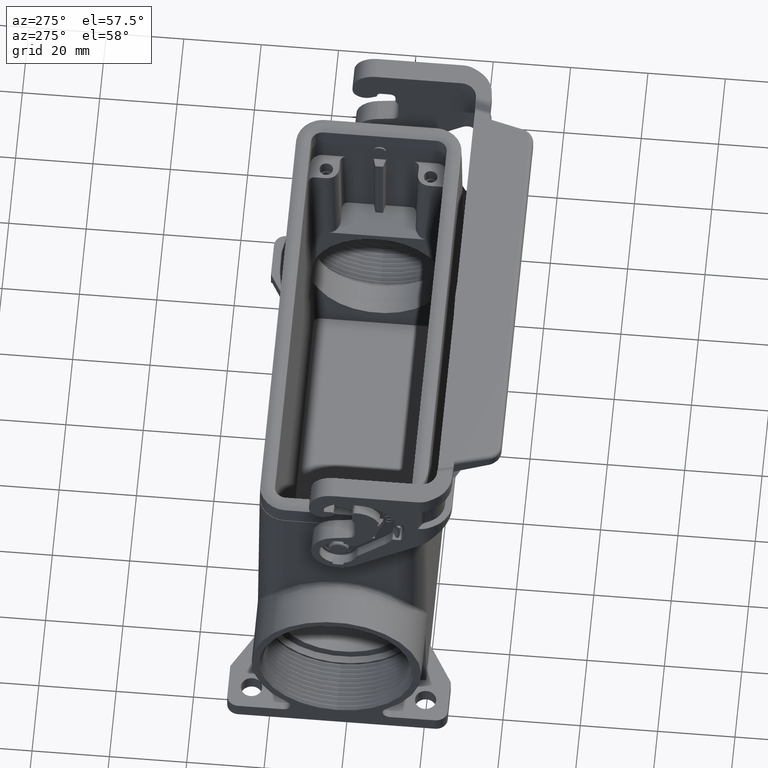
[diagram: clean part render]
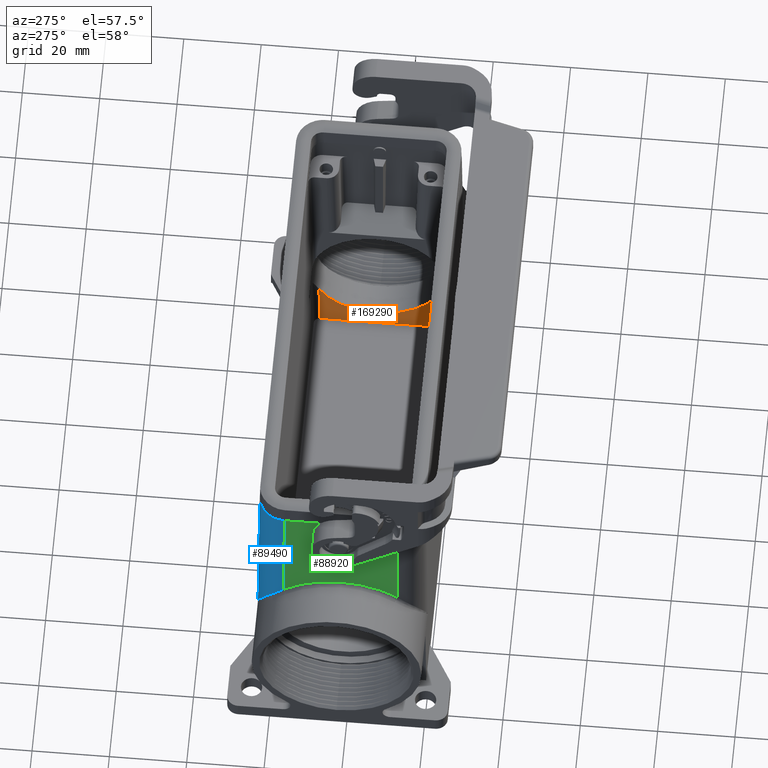
[diagram: same view with three faces highlighted in distinct colors, each labeled with its STEP entity id]
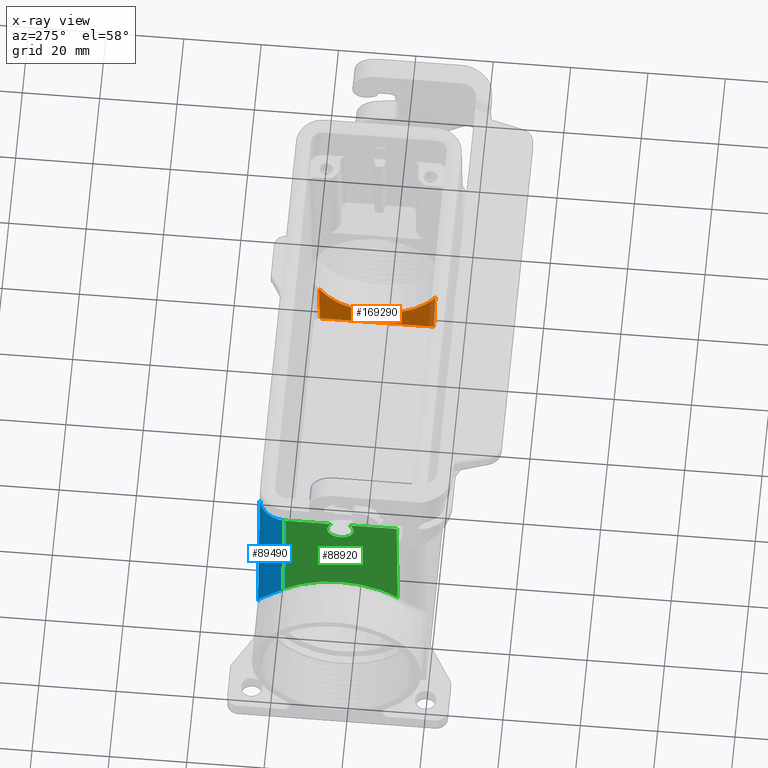
[diagram: x-ray of the same camera — body ghosted, the three highlighted faces saturated]
A machine part, auxiliary view with three faces highlighted in distinct colors.
The next image is the same camera in x-ray (body ghosted, the three faces saturated) — at least one of them is partly hidden behind the body in this view.
Their STEP definitions:

[orange] entity #169290 — the highlighted planar face has unit normal (-0.9997, -0, 0.0233).
#34190=CARTESIAN_POINT('',(11.8242122005722,24.7103080625445,
35.5348656497852));
#34200=DIRECTION('',(-0.0232626536972686,-0.0232626536972686,
0.999458702441438));
#34210=VECTOR('',#34200,1.);
#34220=LINE('',#34190,#34210);
#34230=CARTESIAN_POINT('',(12.5814694147516,25.4675652767239,
2.99999999999997));
#34240=VERTEX_POINT('',#34230);
#34250=CARTESIAN_POINT('',(12.2648725334105,25.1509683953828,
16.6022962960281));
#34260=VERTEX_POINT('',#34250);
#34270=EDGE_CURVE('',#34240,#34260,#34220,.T.);
#85060=CARTESIAN_POINT('',(12.5814694147516,0.,2.99999999999997));
#85070=DIRECTION('',(-2.85039635158937E-18,1.,1.22464679914735E-16));
#85080=VECTOR('',#85070,1.);
#85090=LINE('',#85060,#85080);
#85100=CARTESIAN_POINT('',(12.5814694147516,54.9425947232761,
2.99999999999998));
#85110=VERTEX_POINT('',#85100);
#85120=EDGE_CURVE('',#34240,#85110,#85090,.T.);
#119220=CARTESIAN_POINT('',(11.8242122005722,55.6998519374555,
35.5348656497852));
#119230=DIRECTION('',(-0.0232626536972686,0.0232626536972685,
0.999458702441438));
#119240=VECTOR('',#119230,1.);
#119250=LINE('',#119220,#119240);
#119260=CARTESIAN_POINT('',(12.2648725334105,55.2591916046172,
16.6022962960281));
#119270=VERTEX_POINT('',#119260);
#119280=EDGE_CURVE('',#85110,#119270,#119250,.T.);
#165930=CARTESIAN_POINT('',(12.6508666379349,57.95508,0.0184115905912113
));
#165940=DIRECTION('',(0.999729241314835,0.,0.0232689505578674));
#165950=DIRECTION('',(0.,-1.,0.));
#165960=AXIS2_PLACEMENT_3D('',#165930,#165940,#165950);
#165970=PLANE('',#165960);
#169170=ORIENTED_EDGE('',*,*,#85120,.T.);
#169180=ORIENTED_EDGE('',*,*,#34270,.F.);
#169190=CARTESIAN_POINT('',(12.0810514852568,40.20508,24.5));
#169200=DIRECTION('',(0.999729241314835,0.,0.0232689505578674));
#169210=DIRECTION('',(0.0232689505578674,0.,-0.999729241314835));
#169220=AXIS2_PLACEMENT_3D('',#169190,#169200,#169210);
#169230=ELLIPSE('',#169220,17.0046041442599,17.);
#169240=EDGE_CURVE('',#34260,#119270,#169230,.T.);
#169250=ORIENTED_EDGE('',*,*,#169240,.F.);
#169260=ORIENTED_EDGE('',*,*,#119280,.T.);
#169270=EDGE_LOOP('',(#169260,#169250,#169180,#169170));
#169280=FACE_OUTER_BOUND('',#169270,.T.);
#169290=ADVANCED_FACE('',(#169280),#165970,.T.);

[blue] entity #89490 — the highlighted cylindrical surface (edge-blend (fillet) strip) has radius 7 mm, axis along (0.0087, -0.0087, 0.9999).
#2850=CARTESIAN_POINT('',(120.318578,25.7048134614492,74.5));
#2860=VERTEX_POINT('',#2850);
#2890=CARTESIAN_POINT('',(113.3183114513,25.7053465487002,74.5));
#2900=DIRECTION('',(0.,1.22464679914735E-16,-1.));
#2910=DIRECTION('',(-0.707106781186218,0.707106781186877,
8.65956056235897E-17));
#2920=AXIS2_PLACEMENT_3D('',#2890,#2900,#2910);
#2930=ELLIPSE('',#2920,7.00053308725135,7.);
#2940=CARTESIAN_POINT('',(113.318844538551,18.70508,74.5));
#2950=VERTEX_POINT('',#2940);
#2960=EDGE_CURVE('',#2860,#2950,#2930,.T.);
#59280=CARTESIAN_POINT('',(113.968463101711,25.0551948982886,
-2.53533330069838E-14));
#59290=DIRECTION('',(-0.00872620324394422,0.00872620324394409,
0.99992385047757));
#59300=DIRECTION('',(-0.999961923064171,1.06869237657294E-18,
-0.00872653549837393));
#59310=AXIS2_PLACEMENT_3D('',#59280,#59290,#59300);
#59320=CYLINDRICAL_SURFACE('',#59310,7.);
#59480=CARTESIAN_POINT('',(113.753517422414,18.2704071161367,
24.691420990291));
#59490=VERTEX_POINT('',#59480);
#82100=CARTESIAN_POINT('',(113.753517422414,18.2704071161367,
24.691420990291));
#82110=CARTESIAN_POINT('',(113.846060045276,18.2719958029603,
24.8734664688854));
#82120=CARTESIAN_POINT('',(113.938620892482,18.2754830827744,
25.0554820970824));
#82130=CARTESIAN_POINT('',(114.123630453132,18.2862566555968,
25.419456134952));
#82140=CARTESIAN_POINT('',(114.216085855067,18.2935425828071,
25.6014031121689));
#82150=CARTESIAN_POINT('',(114.400807769353,18.3119178331437,
25.9651877931404));
#82160=CARTESIAN_POINT('',(114.493071058289,18.3230065427213,
26.1470191022474));
#82170=CARTESIAN_POINT('',(114.67731314947,18.3489950824422,
26.5105338513637));
#82180=CARTESIAN_POINT('',(114.769288738305,18.3638940852797,
26.6922108840377));
#82190=CARTESIAN_POINT('',(114.952850098882,18.3975127209538,
27.0553614016385));
#82200=CARTESIAN_POINT('',(115.044432704172,18.4162309648082,
27.2368284763972));
#82210=CARTESIAN_POINT('',(115.227115140011,18.4575027098596,
27.5995306639354));
#82220=CARTESIAN_POINT('',(115.318211799278,18.4800548489272,
27.7807593326365));
#82230=CARTESIAN_POINT('',(115.499819100509,18.529011230562,
28.1429397195044));
#82240=CARTESIAN_POINT('',(115.590326605344,18.5554138083556,
28.3238849689914));
#82250=CARTESIAN_POINT('',(115.770650425379,18.6120912339498,
28.6854542267047));
#82260=CARTESIAN_POINT('',(115.860463636661,18.642364152564,
28.8660717312385));
#82270=CARTESIAN_POINT('',(116.039214608271,18.706778379366,
29.226787151665));
#82280=CARTESIAN_POINT('',(116.128149964279,18.7409141950154,
29.4068788036527));
#82290=CARTESIAN_POINT('',(116.305107985693,18.8131006716728,
29.7666447724271));
#82300=CARTESIAN_POINT('',(116.39312766007,18.8511487987061,
29.9463125317727));
#82310=CARTESIAN_POINT('',(116.568134918817,18.9311883434163,
30.3051766555012));
#82320=CARTESIAN_POINT('',(116.655119594785,18.9731768553597,
30.4843664306842));
#82330=CARTESIAN_POINT('',(116.827933859592,19.0611292757132,
30.8422217839522));
#82340=CARTESIAN_POINT('',(116.913760612064,19.1070899818208,
31.0208807274558));
#82350=CARTESIAN_POINT('',(117.084116847588,19.2030146380058,
31.3775916588943));
#82360=CARTESIAN_POINT('',(117.168643766406,19.2529744720905,
31.55563704213));
#82370=CARTESIAN_POINT('',(117.336274642612,19.3569398169574,
31.9110833841984));
#82380=CARTESIAN_POINT('',(117.419375985967,19.4109413844636,
32.0884776334159));
#82390=CARTESIAN_POINT('',(117.584008166324,19.5230283868383,
32.4425518036915));
#82400=CARTESIAN_POINT('',(117.665536562566,19.5811093951342,
32.6192249931648));
#82410=CARTESIAN_POINT('',(117.82686935294,19.701397536232,
32.9717891063397));
#82420=CARTESIAN_POINT('',(117.906670751037,19.7635993271123,
33.1476717088873));
#82430=CARTESIAN_POINT('',(118.05194437588,19.8820308308677,
33.4708998173166));
#82440=CARTESIAN_POINT('',(118.117680490906,19.9376432859606,
33.6183449160827));
#82450=CARTESIAN_POINT('',(118.247708236452,20.0518515656365,
33.9125778030928));
#82460=CARTESIAN_POINT('',(118.311998235313,20.1104436300824,
34.0593604400421));
#82470=CARTESIAN_POINT('',(118.439020183625,20.2306359876222,
34.3522106858118));
#82480=CARTESIAN_POINT('',(118.501751149875,20.2922326080366,
34.4982742354882));
#82490=CARTESIAN_POINT('',(118.625537871862,20.4184618727884,
34.789632207416));
#82500=CARTESIAN_POINT('',(118.686592771024,20.4830906319423,
34.9349225636494));
#82510=CARTESIAN_POINT('',(118.806889412832,20.6153974887978,
35.2246441574678));
#82520=CARTESIAN_POINT('',(118.866130826219,20.6830707992543,
35.3690714863299));
#82530=CARTESIAN_POINT('',(118.982679168805,20.8215045626358,
35.657030626908));
#82540=CARTESIAN_POINT('',(119.039985621146,20.892260559304,
35.8005584128658));
#82550=CARTESIAN_POINT('',(119.152519494211,21.0368822807434,
36.0866437151753));
#82560=CARTESIAN_POINT('',(119.207746724071,21.1107431565984,
36.2291972646755));
#82570=CARTESIAN_POINT('',(119.315971084532,21.2615990823078,
36.5132614826669));
#82580=CARTESIAN_POINT('',(119.368968217792,21.3385890287486,
36.6547681725972));
#82590=CARTESIAN_POINT('',(119.472441621106,21.4955296027025,
36.9363088002914));
#82600=CARTESIAN_POINT('',(119.522923933286,21.5754668361984,
37.0763412165837));
#82610=CARTESIAN_POINT('',(119.621333836069,21.7384961988711,
37.3551969883353));
#82620=CARTESIAN_POINT('',(119.669262056776,21.8215825880922,
37.4940165326781));
#82630=CARTESIAN_POINT('',(119.762376586228,21.990918350764,
37.7703444509672));
#82640=CARTESIAN_POINT('',(119.807564018749,22.0771615099399,
37.9078491788048));
#82650=CARTESIAN_POINT('',(119.895000992859,22.2528196233878,
38.1814487556976));
#82660=CARTESIAN_POINT('',(119.937251963022,22.3422281206351,
38.3175400046534));
#82670=CARTESIAN_POINT('',(120.018585733044,22.5241736074483,
38.5881378380184));
#82680=CARTESIAN_POINT('',(120.057671830378,22.6167022577943,
38.7226415403311));
#82690=CARTESIAN_POINT('',(120.132471329079,22.80491527569,
38.9900046527242));
#82700=CARTESIAN_POINT('',(120.168187136385,22.9005924137322,
39.1228607016356));
#82710=CARTESIAN_POINT('',(120.23600299696,23.0950735816321,
39.3867875386904));
#82720=CARTESIAN_POINT('',(120.268106246776,23.1938697679482,
39.5178551927237));
#82730=CARTESIAN_POINT('',(120.328443118775,23.3945579546003,
39.7780701230668));
#82740=CARTESIAN_POINT('',(120.356678544705,23.4964348002493,
39.9072055095222));
#82750=CARTESIAN_POINT('',(120.401454349481,23.6733817204784,
40.1264215902846));
#82760=CARTESIAN_POINT('',(120.419006775056,23.7476386845308,
40.2169442246887));
#82770=CARTESIAN_POINT('',(120.451919176463,23.8976715714765,
40.396892287312));
#82780=CARTESIAN_POINT('',(120.467279754957,23.9734399040247,
40.4863112112819));
#82790=CARTESIAN_POINT('',(120.495699299772,24.1264531421521,
40.6639757860452));
#82800=CARTESIAN_POINT('',(120.50876024424,24.2036946451805,
40.7522203927704));
#82810=CARTESIAN_POINT('',(120.532470825421,24.3596188306621,
40.9274736897363));
#82820=CARTESIAN_POINT('',(120.543122572713,24.4382980027543,
41.0144812853878));
#82830=CARTESIAN_POINT('',(120.561897820676,24.5970266430461,
41.1871637580215));
#82840=CARTESIAN_POINT('',(120.570024464793,24.6770719355024,
41.2728378896427));
#82850=CARTESIAN_POINT('',(120.583637174999,24.8385046812766,
41.4428107444454));
#82860=CARTESIAN_POINT('',(120.589125791646,24.9198882653147,
41.5271082866904));
#82870=CARTESIAN_POINT('',(120.597342386432,25.0839321447157,
41.694249854467));
#82880=CARTESIAN_POINT('',(120.600073266992,25.1665882958694,
41.7770926703164));
#82890=CARTESIAN_POINT('',(120.601733285413,25.2737579624089,
41.8827421054681));
#82900=CARTESIAN_POINT('',(120.601984715624,25.2976754926853,
41.9062088150009));
#82910=CARTESIAN_POINT('',(120.602298461286,25.354804611748,
41.9619956331921));
#82920=CARTESIAN_POINT('',(120.602251349804,25.3880565807312,
41.9942537682459));
#82930=CARTESIAN_POINT('',(120.601970741967,25.4214207194819,
42.0264082415233));
#82940=B_SPLINE_CURVE_WITH_KNOTS('',3,(#82100,#82110,#82120,#82130,
#82140,#82150,#82160,#82170,#82180,#82190,#82200,#82210,#82220,#82230,
#82240,#82250,#82260,#82270,#82280,#82290,#82300,#82310,#82320,#82330,
#82340,#82350,#82360,#82370,#82380,#82390,#82400,#82410,#82420,#82430,
#82440,#82450,#82460,#82470,#82480,#82490,#82500,#82510,#82520,#82530,
#82540,#82550,#82560,#82570,#82580,#82590,#82600,#82610,#82620,#82630,
#82640,#82650,#82660,#82670,#82680,#82690,#82700,#82710,#82720,#82730,
#82740,#82750,#82760,#82770,#82780,#82790,#82800,#82810,#82820,#82830,
#82840,#82850,#82860,#82870,#82880,#82890,#82900,#82910,#82920,#82930),
.UNSPECIFIED.,.F.,.F.,(4,2,2,2,2,2,2,2,2,2,2,2,2,2,2,2,2,2,2,2,2,2,2,2,2
,2,2,2,2,2,2,2,2,2,2,2,2,2,2,2,2,4),(0.,0.613255802522239,
1.22649025827538,1.83967804744032,2.45280675947127,3.06580862896543,
3.67871093117657,4.29148897969965,4.90412525206613,5.51608497536884,
6.12785859073013,6.73941551734563,7.35073855174083,7.96171844659107,
8.57241265569201,9.18278158748885,9.79280800343349,10.306238753217,
10.8193862772319,11.3322213711624,11.844732485353,12.3567954269883,
12.8684900749464,13.37977885699,13.8906510259596,14.3998229476871,
14.9085284300285,15.4167194190234,15.9243887699568,16.4312770194126,
16.9375865937622,17.4432569442065,17.9482909296269,18.3068447469986,
18.6650547011255,19.0229003731138,19.3803847450653,19.7373837351508,
20.0940075064604,20.4502359883569,20.5522851587564,20.6934588827707),
.UNSPECIFIED.);
#82950=CARTESIAN_POINT('',(120.601970741967,25.4214207194819,
42.0264082415233));
#82960=VERTEX_POINT('',#82950);
#82970=EDGE_CURVE('',#59490,#82960,#82940,.T.);
#88450=CARTESIAN_POINT('',(120.968196563161,25.0551948982886,
0.0610857484885922));
#88460=DIRECTION('',(-0.00872620324394422,0.00872620324394409,
0.99992385047757));
#88470=VECTOR('',#88460,1.);
#88480=LINE('',#88450,#88470);
#88490=EDGE_CURVE('',#82960,#2860,#88480,.T.);
#89380=ORIENTED_EDGE('',*,*,#88490,.T.);
#89390=ORIENTED_EDGE('',*,*,#82970,.T.);
#89400=CARTESIAN_POINT('',(113.968463101711,18.0554614368394,
0.0610857484885913));
#89410=DIRECTION('',(-0.00872620324394422,0.00872620324394409,
0.99992385047757));
#89420=VECTOR('',#89410,1.);
#89430=LINE('',#89400,#89420);
#89440=EDGE_CURVE('',#59490,#2950,#89430,.T.);
#89450=ORIENTED_EDGE('',*,*,#89440,.F.);
#89460=ORIENTED_EDGE('',*,*,#2960,.T.);
#89470=EDGE_LOOP('',(#89460,#89450,#89390,#89380));
#89480=FACE_OUTER_BOUND('',#89470,.T.);
#89490=ADVANCED_FACE('',(#89480),#59320,.T.);

[green] entity #88920 — the highlighted planar face has unit normal (1, -0, -0.0087).
#620=CARTESIAN_POINT('',(120.318578,54.7053465385508,74.5));
#630=VERTEX_POINT('',#620);
#660=CARTESIAN_POINT('',(120.318578,5.08723606155422E-15,74.5));
#670=DIRECTION('',(0.,1.,1.22464679914735E-16));
#680=VECTOR('',#670,1.);
#690=LINE('',#660,#680);
#700=CARTESIAN_POINT('',(120.318578,42.467406094865,74.5));
#710=VERTEX_POINT('',#700);
#720=EDGE_CURVE('',#710,#630,#690,.T.);
#2810=CARTESIAN_POINT('',(120.318578,37.8587186461439,74.5));
#2820=VERTEX_POINT('',#2810);
#2850=CARTESIAN_POINT('',(120.318578,25.7048134614492,74.5));
#2860=VERTEX_POINT('',#2850);
#2870=EDGE_CURVE('',#2860,#2820,#690,.T.);
#63810=CARTESIAN_POINT('',(120.601970741967,54.9887392805179,
42.0264082415494));
#63820=VERTEX_POINT('',#63810);
#63850=CARTESIAN_POINT('',(120.968196563161,55.3549651017114,
0.0610857484885959));
#63860=DIRECTION('',(-0.00872620324394422,-0.00872620324394434,
0.99992385047757));
#63870=VECTOR('',#63860,1.);
#63880=LINE('',#63850,#63870);
#63890=EDGE_CURVE('',#63820,#630,#63880,.T.);
#82950=CARTESIAN_POINT('',(120.601970741967,25.4214207194819,
42.0264082415233));
#82960=VERTEX_POINT('',#82950);
#88400=CARTESIAN_POINT('',(120.968704894629,18.70508,0.00283673171921044
));
#88410=DIRECTION('',(-0.999961923064171,1.06869237657294E-18,
-0.00872653549837393));
#88420=DIRECTION('',(0.,1.,1.22464679914735E-16));
#88430=AXIS2_PLACEMENT_3D('',#88400,#88410,#88420);
#88440=PLANE('',#88430);
#88450=CARTESIAN_POINT('',(120.968196563161,25.0551948982886,
0.0610857484885922));
#88460=DIRECTION('',(-0.00872620324394422,0.00872620324394409,
0.99992385047757));
#88470=VECTOR('',#88460,1.);
#88480=LINE('',#88450,#88470);
#88490=EDGE_CURVE('',#82960,#2860,#88480,.T.);
#88500=ORIENTED_EDGE('',*,*,#88490,.F.);
#88510=ORIENTED_EDGE('',*,*,#2870,.F.);
#88520=CARTESIAN_POINT('',(120.340395169477,40.1630623705045,72.));
#88530=DIRECTION('',(-0.999961923064171,1.06869237657294E-18,
-0.00872653549837393));
#88540=DIRECTION('',(0.00872653549837394,-2.12197055592782E-14,
-0.999961923064171));
#88550=AXIS2_PLACEMENT_3D('',#88520,#88530,#88540);
#88560=ELLIPSE('',#88550,3.4001294665115,3.4);
#88570=CARTESIAN_POINT('',(120.340395169477,36.7630623705045,72.));
#88580=VERTEX_POINT('',#88570);
#88590=EDGE_CURVE('',#88580,#2820,#88560,.T.);
#88600=ORIENTED_EDGE('',*,*,#88590,.T.);
#88610=CARTESIAN_POINT('',(120.340395169477,43.5630623705045,72.));
#88620=VERTEX_POINT('',#88610);
#88630=EDGE_CURVE('',#88620,#88580,#88560,.T.);
#88640=ORIENTED_EDGE('',*,*,#88630,.T.);
#88650=EDGE_CURVE('',#710,#88620,#88560,.T.);
#88660=ORIENTED_EDGE('',*,*,#88650,.T.);
#88670=ORIENTED_EDGE('',*,*,#720,.F.);
#88680=ORIENTED_EDGE('',*,*,#63890,.T.);
#88690=CARTESIAN_POINT('',(120.601970741967,25.4214207194819,
42.0264082415233));
#88700=CARTESIAN_POINT('',(120.601700588386,25.4581387596814,
42.0573647757447));
#88710=CARTESIAN_POINT('',(120.601431441954,25.4949538676778,
42.0882059020429));
#88720=CARTESIAN_POINT('',(120.592657024723,26.7028490784143,
43.0936545282682));
#88730=CARTESIAN_POINT('',(120.585184938145,27.968763835919,
43.9498708429079));
#88740=CARTESIAN_POINT('',(120.571009545039,30.9781652589275,
45.5742100039438));
#88750=CARTESIAN_POINT('',(120.56498976951,32.7502661989105,
46.2640079558392));
#88760=CARTESIAN_POINT('',(120.55689060107,36.4236037448019,
47.1920807346182));
#88770=CARTESIAN_POINT('',(120.554842397775,38.3106941486967,
47.4267815853));
#88780=CARTESIAN_POINT('',(120.554842397775,42.0994658513033,
47.4267815853));
#88790=CARTESIAN_POINT('',(120.55689060107,43.9865562551981,
47.1920807346182));
#88800=CARTESIAN_POINT('',(120.56498976951,47.6598938010895,
46.2640079558392));
#88810=CARTESIAN_POINT('',(120.571009545039,49.4319947410727,
45.5742100039437));
#88820=CARTESIAN_POINT('',(120.585184938145,52.4413961640802,
43.9498708429084));
#88830=CARTESIAN_POINT('',(120.592657024723,53.7073109215841,
43.0936545282693));
#88840=CARTESIAN_POINT('',(120.601431441954,54.9152061323118,
42.0882059020516));
#88850=CARTESIAN_POINT('',(120.601700588386,54.9520212403217,
42.0573647757679));
#88860=CARTESIAN_POINT('',(120.601970741967,54.9887392805179,
42.0264082415494));
#88870=B_SPLINE_CURVE_WITH_KNOTS('',3,(#88690,#88700,#88710,#88720,
#88730,#88740,#88750,#88760,#88770,#88780,#88790,#88800,#88810,#88820,
#88830,#88840,#88850,#88860),.UNSPECIFIED.,.F.,.F.,(4,2,2,2,2,2,2,2,4),(
0.,0.140929897986439,4.61176012079203,10.1639314900745,15.7161008050812,
21.2682701200879,26.8204414893706,31.2912717121739,31.4322016101292),
.UNSPECIFIED.);
#88880=EDGE_CURVE('',#82960,#63820,#88870,.T.);
#88890=ORIENTED_EDGE('',*,*,#88880,.T.);
#88900=EDGE_LOOP('',(#88890,#88680,#88670,#88660,#88640,#88600,#88510,
#88500));
#88910=FACE_OUTER_BOUND('',#88900,.T.);
#88920=ADVANCED_FACE('',(#88910),#88440,.F.);